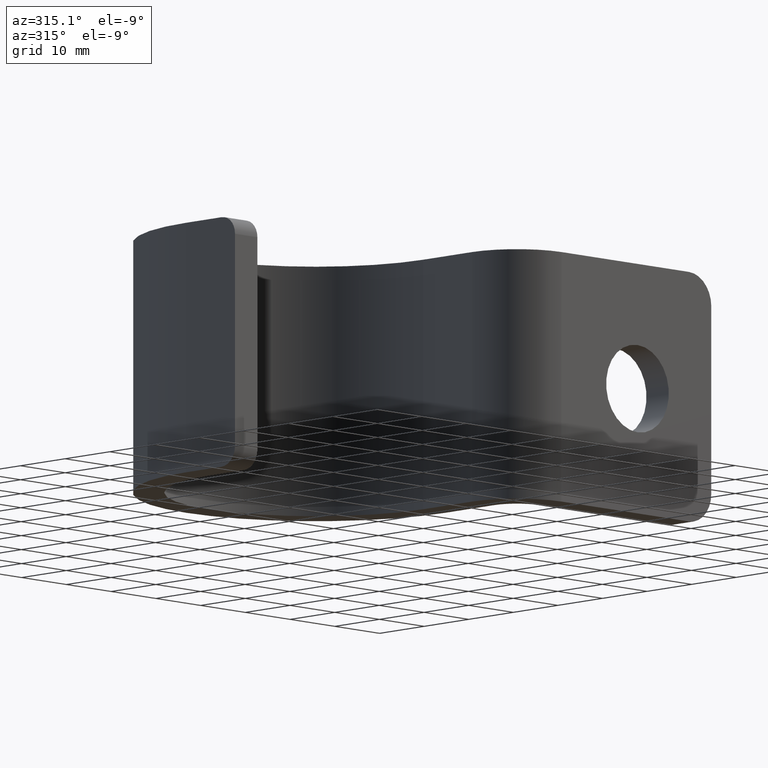
[diagram: clean part render]
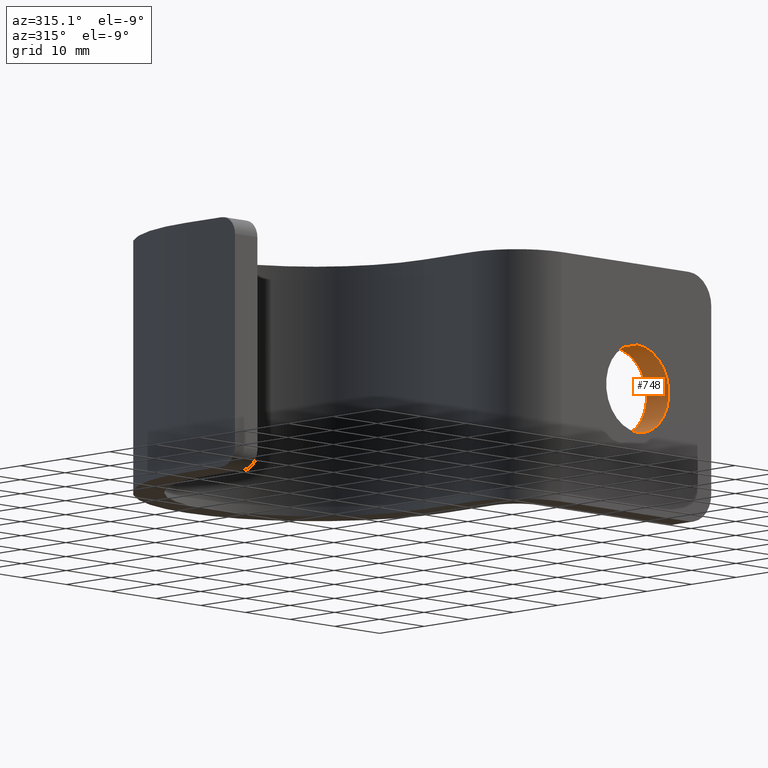
[diagram: same view with one face highlighted and labeled with its STEP entity id]
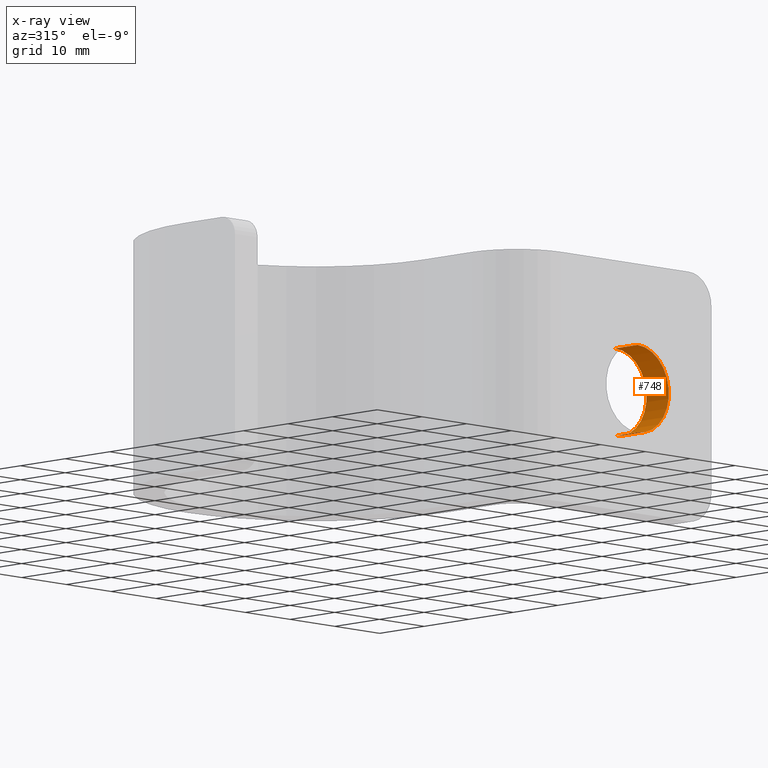
[diagram: x-ray of the same camera — body ghosted, the highlighted face saturated]
A machine part, auxiliary view. The second image highlights one B-rep face of the part: STEP entity #748.
The next image is the same camera in x-ray: the body ghosted, the highlighted face saturated — about 0% of this face is hidden behind the body in this view.
In plain terms, the highlighted cylindrical surface (partial cylindrical patch) has radius 7 mm, axis along (-0, 1, 0).
Its self-contained STEP definition (entity closure, byte-faithful):
#64 = CARTESIAN_POINT ( 'NONE',  ( 51.00000000000059686, 8.000000000000230926, 7.000000000000885514 ) ) ;
#66 = CARTESIAN_POINT ( 'NONE',  ( 51.00000000000059686, 3.000000000000114575, -7.000000000000443201 ) ) ;
#75 = ORIENTED_EDGE ( 'NONE', *, *, #294, .F. ) ;
#95 = LINE ( 'NONE', #787, #482 ) ;
#123 = DIRECTION ( 'NONE',  ( 0.000000000000000000, 1.858632295689435856E-16, 1.000000000000000000 ) ) ;
#138 = CARTESIAN_POINT ( 'NONE',  ( 51.00000000000059686, 8.000000000000229150, 8.881784197001252323E-13 ) ) ;
#158 = ORIENTED_EDGE ( 'NONE', *, *, #229, .T. ) ;
#178 = AXIS2_PLACEMENT_3D ( 'NONE', #138, #205, #414 ) ;
#191 = CARTESIAN_POINT ( 'NONE',  ( 51.00000000000059686, 3.000000000000113687, -4.440892098500626162E-13 ) ) ;
#205 = DIRECTION ( 'NONE',  ( -5.551115123125790098E-17, 1.000000000000000000, 1.110223024625158020E-16 ) ) ;
#209 = EDGE_CURVE ( 'NONE', #339, #308, #707, .T. ) ;
#211 = ORIENTED_EDGE ( 'NONE', *, *, #209, .T. ) ;
#227 = CIRCLE ( 'NONE', #431, 7.000000000000000888 ) ;
#229 = EDGE_CURVE ( 'NONE', #308, #553, #318, .T. ) ;
#294 = EDGE_CURVE ( 'NONE', #657, #553, #95, .T. ) ;
#308 = VERTEX_POINT ( 'NONE', #794 ) ;
#318 = CIRCLE ( 'NONE', #319, 6.999999999999993783 ) ;
#319 = AXIS2_PLACEMENT_3D ( 'NONE', #449, #843, #704 ) ;
#339 = VERTEX_POINT ( 'NONE', #662 ) ;
#414 = DIRECTION ( 'NONE',  ( 0.000000000000000000, 2.478176394252582620E-16, 1.000000000000000000 ) ) ;
#431 = AXIS2_PLACEMENT_3D ( 'NONE', #191, #450, #123 ) ;
#449 = CARTESIAN_POINT ( 'NONE',  ( 51.00000000000059686, 8.000000000000229150, 8.881784197001252323E-13 ) ) ;
#450 = DIRECTION ( 'NONE',  ( -5.551115123125790098E-17, 1.000000000000000000, 1.110223024625158020E-16 ) ) ;
#482 = VECTOR ( 'NONE', #666, 1000.000000000000000 ) ;
#501 = VECTOR ( 'NONE', #515, 1000.000000000000000 ) ;
#515 = DIRECTION ( 'NONE',  ( -5.551115123125790098E-17, 1.000000000000000000, 1.110223024625158020E-16 ) ) ;
#540 = FACE_OUTER_BOUND ( 'NONE', #592, .T. ) ;
#553 = VERTEX_POINT ( 'NONE', #614 ) ;
#592 = EDGE_LOOP ( 'NONE', ( #75, #673, #211, #158 ) ) ;
#602 = EDGE_CURVE ( 'NONE', #339, #657, #227, .T. ) ;
#614 = CARTESIAN_POINT ( 'NONE',  ( 51.00000000000059686, 8.000000000000229150, -6.999999999999103828 ) ) ;
#657 = VERTEX_POINT ( 'NONE', #66 ) ;
#662 = CARTESIAN_POINT ( 'NONE',  ( 51.00000000000059686, 3.000000000000115019, 6.999999999999556799 ) ) ;
#666 = DIRECTION ( 'NONE',  ( -5.551115123125790098E-17, 1.000000000000000000, 1.110223024625158020E-16 ) ) ;
#673 = ORIENTED_EDGE ( 'NONE', *, *, #602, .F. ) ;
#704 = DIRECTION ( 'NONE',  ( 0.000000000000000000, 2.478176394252583606E-16, 1.000000000000000000 ) ) ;
#707 = LINE ( 'NONE', #64, #501 ) ;
#748 = ADVANCED_FACE ( 'NONE', ( #540 ), #792, .F. ) ;
#787 = CARTESIAN_POINT ( 'NONE',  ( 51.00000000000059686, 8.000000000000227374, -6.999999999999109157 ) ) ;
#792 = CYLINDRICAL_SURFACE ( 'NONE', #178, 6.999999999999997335 ) ;
#794 = CARTESIAN_POINT ( 'NONE',  ( 51.00000000000059686, 8.000000000000230926, 7.000000000000881961 ) ) ;
#843 = DIRECTION ( 'NONE',  ( -5.551115123125790098E-17, 1.000000000000000000, 1.110223024625158020E-16 ) ) ;